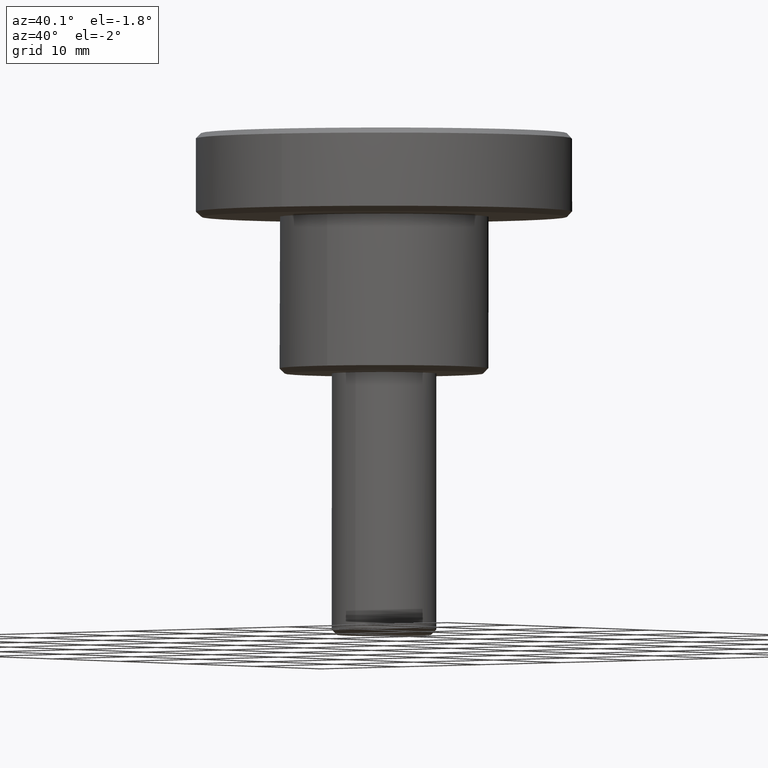
[diagram: clean part render]
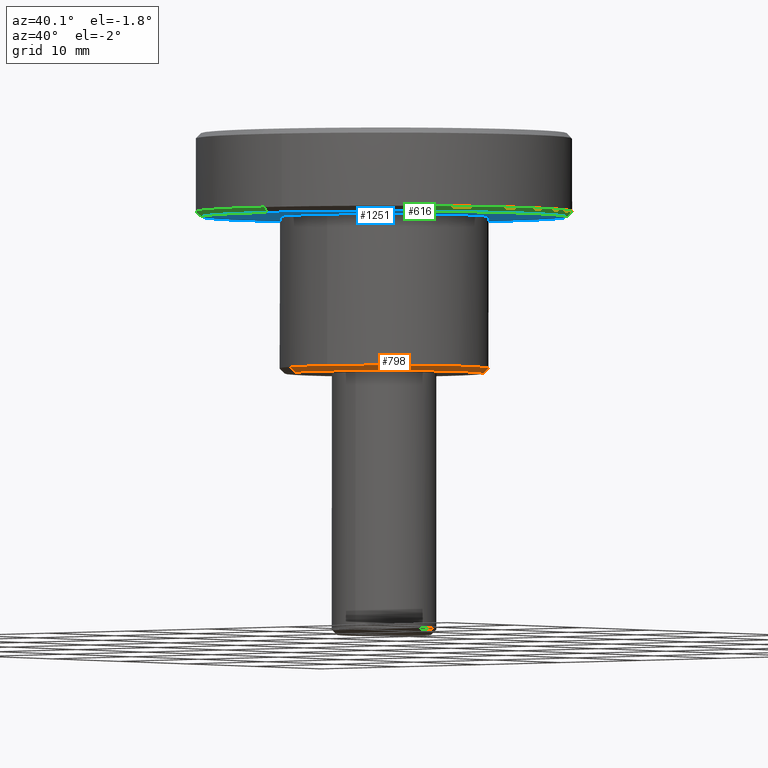
[diagram: same view with three faces highlighted in distinct colors, each labeled with its STEP entity id]
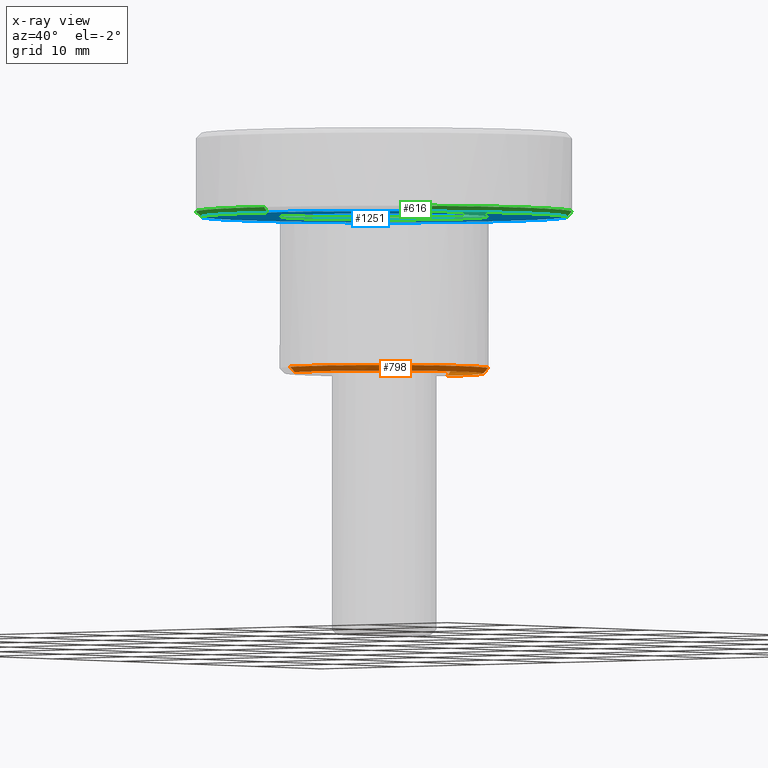
[diagram: x-ray of the same camera — body ghosted, the three highlighted faces saturated]
A machine part, auxiliary view with three faces highlighted in distinct colors.
The next image is the same camera in x-ray (body ghosted, the three faces saturated) — at least one of them is partly hidden behind the body in this view.
Their STEP definitions:

[orange] entity #798 — the highlighted face is a freeform B-spline surface patch.
#677=CARTESIAN_POINT('',(-3.834993910984958,-8.677872893325199,-0.012499999999999));
#678=CARTESIAN_POINT('',(-1.963370728928781,-9.504995345460285,-0.012499999999999));
#679=CARTESIAN_POINT('',(0.082793005540822,-9.487138745071324,-0.012499999999999));
#680=CARTESIAN_POINT('',(9.569931750612147,-9.404345739530502,-0.012499999999999));
#681=CARTESIAN_POINT('',(9.487138745071324,0.082793005540822,-0.012499999999999));
#682=CARTESIAN_POINT('',(9.404345739530502,9.569931750612147,-0.012499999999999));
#683=CARTESIAN_POINT('',(-0.082793005540822,9.487138745071324,-0.012499999999999));
#684=CARTESIAN_POINT('',(-4.047333330101089,-9.158357225791594,0.512812499999944));
#685=CARTESIAN_POINT('',(-2.072080419157019,-10.031276543606490,0.512812499999944));
#686=CARTESIAN_POINT('',(0.087377163719812,-10.012431242780970,0.512812499999944));
#687=CARTESIAN_POINT('',(10.099808406500783,-9.925054079061161,0.512812499999944));
#688=CARTESIAN_POINT('',(10.012431242780970,0.087377163719812,0.512812499999944));
#689=CARTESIAN_POINT('',(9.925054079061161,10.099808406500783,0.512812499999944));
#690=CARTESIAN_POINT('',(-0.087377163719812,10.012431242780970,0.512812499999944));
#698=(BOUNDED_SURFACE()B_SPLINE_SURFACE(2,1,((#677,#684),(#678,#685),(#679,#686),(#680,#687),(#681,#688),(#682,#689),(#683,#690)),.UNSPECIFIED.,.F.,.F.,.U.)B_SPLINE_SURFACE_WITH_KNOTS((3,2,2,3),(2,2),(0.0,4.645135863198720,21.234906803194139,37.824677743189568),(0.0,1.0),.UNSPECIFIED.)GEOMETRIC_REPRESENTATION_ITEM()RATIONAL_B_SPLINE_SURFACE(((0.881905454174416,0.881905454174416),(0.917989898732233,0.917989898732233),(1.0,1.0),(0.707106781186548,0.707106781186548),(1.0,1.0),(0.707106781186548,0.707106781186548),(1.0,1.0)))REPRESENTATION_ITEM('')SURFACE());
#699=CARTESIAN_POINT('',(-4.042154319910639,-9.146638095720460,0.500000000002798));
#700=VERTEX_POINT('',#699);
#701=CARTESIAN_POINT('',(1.241265795595685,-9.922663917742991,0.499999999999938));
#702=VERTEX_POINT('',#701);
#703=CARTESIAN_POINT('',(-4.042154319910640,-9.146638095720460,0.500000000002798));
#704=CARTESIAN_POINT('',(-2.111156172553931,-10.000000000000002,0.499999999999945));
#705=CARTESIAN_POINT('',(0.0,-10.0,0.499999999999945));
#706=CARTESIAN_POINT('',(0.623042079473550,-10.0,0.499999999999945));
#707=CARTESIAN_POINT('',(1.241265795595685,-9.922663917742991,0.499999999999938));
#715=(BOUNDED_CURVE()B_SPLINE_CURVE(2,(#703,#704,#705,#706,#707),.UNSPECIFIED.,.F.,.U.)B_SPLINE_CURVE_WITH_KNOTS((3,2,3),(0.181361578458884,0.250000000000000,0.271473687198623),.UNSPECIFIED.)CURVE()GEOMETRIC_REPRESENTATION_ITEM()RATIONAL_B_SPLINE_CURVE((0.883326595750776,0.919585087122192,1.0,0.974842010546408,0.954005899461398))REPRESENTATION_ITEM(''));
#716=EDGE_CURVE('',#700,#702,#715,.T.);
#717=ORIENTED_EDGE('',*,*,#716,.F.);
#718=CARTESIAN_POINT('',(-3.840046603930024,-8.689306190929296,4.038215E-012));
#719=VERTEX_POINT('',#718);
#720=CARTESIAN_POINT('',(-3.840046603930024,-8.689306190929296,4.038215E-012));
#721=CARTESIAN_POINT('',(-4.042154319910639,-9.146638095720460,0.500000000002798));
#722=QUASI_UNIFORM_CURVE('',1,(#720,#721),.UNSPECIFIED.,.F.,.U.);
#723=EDGE_CURVE('',#719,#700,#722,.T.);
#724=ORIENTED_EDGE('',*,*,#723,.F.);
#725=CARTESIAN_POINT('',(9.500000000000000,0.0,0.0));
#726=VERTEX_POINT('',#725);
#727=CARTESIAN_POINT('',(9.500000000000000,0.0,0.0));
#728=CARTESIAN_POINT('',(9.500000000000000,-9.500000000000000,0.0));
#729=CARTESIAN_POINT('',(0.0,-9.500000000000000,0.0));
#730=CARTESIAN_POINT('',(-2.005598363942649,-9.500000000000000,0.0));
#731=CARTESIAN_POINT('',(-3.840046603930024,-8.689306190929296,4.038215E-012));
#739=(BOUNDED_CURVE()B_SPLINE_CURVE(2,(#727,#728,#729,#730,#731),.UNSPECIFIED.,.F.,.U.)B_SPLINE_CURVE_WITH_KNOTS((3,2,3),(0.500000000000000,0.750000000000000,0.818638421541633),.UNSPECIFIED.)CURVE()GEOMETRIC_REPRESENTATION_ITEM()RATIONAL_B_SPLINE_CURVE((1.0,0.707106781186548,1.0,0.919585087121586,0.883326595750231))REPRESENTATION_ITEM(''));
#740=EDGE_CURVE('',#726,#719,#739,.T.);
#741=ORIENTED_EDGE('',*,*,#740,.F.);
#742=CARTESIAN_POINT('',(-0.082902087248873,9.499638269111445,1.942057E-012));
#743=VERTEX_POINT('',#742);
#744=CARTESIAN_POINT('',(-0.082902087248873,9.499638269111445,1.942057E-012));
#745=CARTESIAN_POINT('',(-0.041451832810970,9.500000000000002,0.0));
#746=CARTESIAN_POINT('',(0.0,9.500000000000000,0.0));
#747=CARTESIAN_POINT('',(9.500000000000000,9.500000000000000,0.0));
#748=CARTESIAN_POINT('',(9.500000000000000,0.0,0.0));
#756=(BOUNDED_CURVE()B_SPLINE_CURVE(2,(#744,#745,#746,#747,#748),.UNSPECIFIED.,.F.,.U.)B_SPLINE_CURVE_WITH_KNOTS((3,2,3),(0.248460105664482,0.250000000000000,0.500000000000000),.UNSPECIFIED.)CURVE()GEOMETRIC_REPRESENTATION_ITEM()RATIONAL_B_SPLINE_CURVE((0.996414028099178,0.998195901565751,1.0,0.707106781186548,1.0))REPRESENTATION_ITEM(''));
#757=EDGE_CURVE('',#743,#726,#756,.T.);
#758=ORIENTED_EDGE('',*,*,#757,.F.);
#759=CARTESIAN_POINT('',(-0.087262114092629,9.999619258921394,0.499999999998912));
#760=VERTEX_POINT('',#759);
#761=CARTESIAN_POINT('',(-0.082902087248873,9.499638269111445,1.942057E-012));
#762=CARTESIAN_POINT('',(-0.087262114092629,9.999619258921394,0.499999999998912));
#763=QUASI_UNIFORM_CURVE('',1,(#761,#762),.UNSPECIFIED.,.F.,.U.);
#764=EDGE_CURVE('',#743,#760,#763,.T.);
#765=ORIENTED_EDGE('',*,*,#764,.T.);
#766=CARTESIAN_POINT('',(10.0,0.0,0.499999999999945));
#767=VERTEX_POINT('',#766);
#768=CARTESIAN_POINT('',(10.0,0.0,0.499999999999945));
#769=CARTESIAN_POINT('',(10.000000000000002,10.000000000000002,0.499999999999945));
#770=CARTESIAN_POINT('',(0.0,10.0,0.499999999999945));
#771=CARTESIAN_POINT('',(-0.043631887668918,10.0,0.499999999999945));
#772=CARTESIAN_POINT('',(-0.087262114092629,9.999619258921394,0.499999999998912));
#780=(BOUNDED_CURVE()B_SPLINE_CURVE(2,(#768,#769,#770,#771,#772),.UNSPECIFIED.,.F.,.U.)B_SPLINE_CURVE_WITH_KNOTS((3,2,3),(0.500000000000000,0.750000000000000,0.751539837246853),.UNSPECIFIED.)CURVE()GEOMETRIC_REPRESENTATION_ITEM()RATIONAL_B_SPLINE_CURVE((1.0,0.707106781186548,1.0,0.998195968449281,0.996414160218372))REPRESENTATION_ITEM(''));
#781=EDGE_CURVE('',#767,#760,#780,.T.);
#782=ORIENTED_EDGE('',*,*,#781,.F.);
#783=CARTESIAN_POINT('',(1.241265795595685,-9.922663917742991,0.499999999999938));
#784=CARTESIAN_POINT('',(10.000000000000002,-8.826998754570639,0.499999999999945));
#785=CARTESIAN_POINT('',(10.0,0.0,0.499999999999945));
#793=(BOUNDED_CURVE()B_SPLINE_CURVE(2,(#783,#784,#785),.UNSPECIFIED.,.F.,.U.)B_SPLINE_CURVE_WITH_KNOTS((3,3),(0.271473687198623,0.500000000000000),.UNSPECIFIED.)CURVE()GEOMETRIC_REPRESENTATION_ITEM()RATIONAL_B_SPLINE_CURVE((0.954005899461398,0.732264770640140,1.0))REPRESENTATION_ITEM(''));
#794=EDGE_CURVE('',#702,#767,#793,.T.);
#795=ORIENTED_EDGE('',*,*,#794,.F.);
#796=EDGE_LOOP('',(#717,#724,#741,#758,#765,#782,#795));
#797=FACE_OUTER_BOUND('',#796,.T.);
#798=ADVANCED_FACE('',(#797),#698,.T.);

[blue] entity #1251 — the highlighted face is a freeform B-spline surface patch.
#487=CARTESIAN_POINT('',(17.500000000000000,0.0,15.0));
#488=VERTEX_POINT('',#487);
#489=CARTESIAN_POINT('',(14.330156972432810,-10.044730018544760,15.000000000000540));
#490=VERTEX_POINT('',#489);
#491=CARTESIAN_POINT('',(17.500000000000000,0.0,15.0));
#492=CARTESIAN_POINT('',(17.499999999999996,-5.522523042440245,15.000000000000004));
#493=CARTESIAN_POINT('',(14.330156972432809,-10.044730018544755,15.000000000000544));
#501=(BOUNDED_CURVE()B_SPLINE_CURVE(2,(#491,#492,#493),.UNSPECIFIED.,.F.,.U.)B_SPLINE_CURVE_WITH_KNOTS((3,3),(0.0,0.098673726203091),.UNSPECIFIED.)CURVE()GEOMETRIC_REPRESENTATION_ITEM()RATIONAL_B_SPLINE_CURVE((1.0,0.884396538880238,0.860049271925764))REPRESENTATION_ITEM(''));
#502=EDGE_CURVE('',#488,#490,#501,.T.);
#504=CARTESIAN_POINT('',(-17.500000000000000,0.0,15.0));
#505=VERTEX_POINT('',#504);
#506=CARTESIAN_POINT('',(-17.500000000000000,0.0,15.0));
#507=CARTESIAN_POINT('',(-17.499999999999996,17.499999999999996,14.999999999999995));
#508=CARTESIAN_POINT('',(0.0,17.500000000000000,15.0));
#509=CARTESIAN_POINT('',(17.499999999999996,17.499999999999996,14.999999999999995));
#510=CARTESIAN_POINT('',(17.500000000000000,0.0,15.0));
#518=(BOUNDED_CURVE()B_SPLINE_CURVE(2,(#506,#507,#508,#509,#510),.UNSPECIFIED.,.F.,.U.)B_SPLINE_CURVE_WITH_KNOTS((3,2,3),(0.500000000000000,0.750000000000000,1.0),.UNSPECIFIED.)CURVE()GEOMETRIC_REPRESENTATION_ITEM()RATIONAL_B_SPLINE_CURVE((1.0,0.707106781186548,1.0,0.707106781186548,1.0))REPRESENTATION_ITEM(''));
#519=EDGE_CURVE('',#505,#488,#518,.T.);
#521=CARTESIAN_POINT('',(0.152714371270018,-17.499333653629169,15.000000000006590));
#522=VERTEX_POINT('',#521);
#523=CARTESIAN_POINT('',(0.152714371270018,-17.499333653629169,15.000000000006594));
#524=CARTESIAN_POINT('',(0.076358639410697,-17.500000000000004,14.999999999999996));
#525=CARTESIAN_POINT('',(0.0,-17.500000000000000,15.0));
#526=CARTESIAN_POINT('',(-17.499999999999996,-17.499999999999996,14.999999999999995));
#527=CARTESIAN_POINT('',(-17.500000000000000,0.0,15.0));
#535=(BOUNDED_CURVE()B_SPLINE_CURVE(2,(#523,#524,#525,#526,#527),.UNSPECIFIED.,.F.,.U.)B_SPLINE_CURVE_WITH_KNOTS((3,2,3),(0.248460105664038,0.250000000000000,0.500000000000000),.UNSPECIFIED.)CURVE()GEOMETRIC_REPRESENTATION_ITEM()RATIONAL_B_SPLINE_CURVE((0.996414028098150,0.998195901565230,1.0,0.707106781186548,1.0))REPRESENTATION_ITEM(''));
#536=EDGE_CURVE('',#522,#505,#535,.T.);
#631=CARTESIAN_POINT('',(14.330156972432812,-10.044730018544756,15.000000000000535));
#632=CARTESIAN_POINT('',(9.159947341174370,-17.420728722283801,15.000000000000007));
#633=CARTESIAN_POINT('',(0.152714371270018,-17.499333653629169,15.000000000006599));
#641=(BOUNDED_CURVE()B_SPLINE_CURVE(2,(#631,#632,#633),.UNSPECIFIED.,.F.,.U.)B_SPLINE_CURVE_WITH_KNOTS((3,3),(0.098673726203091,0.248460105664038),.UNSPECIFIED.)CURVE()GEOMETRIC_REPRESENTATION_ITEM()RATIONAL_B_SPLINE_CURVE((0.860049271925764,0.823090203821112,0.996414028098150))REPRESENTATION_ITEM(''));
#642=EDGE_CURVE('',#490,#522,#641,.T.);
#1033=CARTESIAN_POINT('',(-0.087258199856431,9.999619293078442,15.0));
#1034=VERTEX_POINT('',#1033);
#1040=CARTESIAN_POINT('',(10.0,0.0,15.0));
#1041=VERTEX_POINT('',#1040);
#1042=CARTESIAN_POINT('',(-0.087258199856431,9.999619293078442,15.0));
#1043=CARTESIAN_POINT('',(-0.043629930439046,10.0,14.999999999999996));
#1044=CARTESIAN_POINT('',(0.0,10.0,15.0));
#1045=CARTESIAN_POINT('',(10.000000000000002,10.000000000000002,14.999999999999995));
#1046=CARTESIAN_POINT('',(10.0,0.0,15.0));
#1054=(BOUNDED_CURVE()B_SPLINE_CURVE(2,(#1042,#1043,#1044,#1045,#1046),.UNSPECIFIED.,.F.,.U.)B_SPLINE_CURVE_WITH_KNOTS((3,2,3),(0.248460231702231,0.250000000000000,0.500000000000000),.UNSPECIFIED.)CURVE()GEOMETRIC_REPRESENTATION_ITEM()RATIONAL_B_SPLINE_CURVE((0.996414319785989,0.998196049228158,1.0,0.707106781186548,1.0))REPRESENTATION_ITEM(''));
#1055=EDGE_CURVE('',#1034,#1041,#1054,.T.);
#1057=CARTESIAN_POINT('',(1.241273352387149,-9.922662972438818,15.0));
#1058=VERTEX_POINT('',#1057);
#1059=CARTESIAN_POINT('',(10.0,0.0,15.0));
#1060=CARTESIAN_POINT('',(10.0,-8.826991979813105,15.000000000000004));
#1061=CARTESIAN_POINT('',(1.241273352387149,-9.922662972438818,15.0));
#1069=(BOUNDED_CURVE()B_SPLINE_CURVE(2,(#1059,#1060,#1061),.UNSPECIFIED.,.F.,.U.)B_SPLINE_CURVE_WITH_KNOTS((3,3),(0.500000000000000,0.728526184365861),.UNSPECIFIED.)CURVE()GEOMETRIC_REPRESENTATION_ITEM()RATIONAL_B_SPLINE_CURVE((1.0,0.732264921111706,0.954005650217289))REPRESENTATION_ITEM(''));
#1070=EDGE_CURVE('',#1041,#1058,#1069,.T.);
#1105=CARTESIAN_POINT('',(-10.0,0.0,15.0));
#1106=VERTEX_POINT('',#1105);
#1107=CARTESIAN_POINT('',(1.241273352387149,-9.922662972438818,15.0));
#1108=CARTESIAN_POINT('',(0.623045902098769,-10.000000000000002,15.000000000000004));
#1109=CARTESIAN_POINT('',(0.0,-10.0,15.0));
#1110=CARTESIAN_POINT('',(-10.000000000000002,-10.000000000000002,14.999999999999995));
#1111=CARTESIAN_POINT('',(-10.0,0.0,15.0));
#1119=(BOUNDED_CURVE()B_SPLINE_CURVE(2,(#1107,#1108,#1109,#1110,#1111),.UNSPECIFIED.,.F.,.U.)B_SPLINE_CURVE_WITH_KNOTS((3,2,3),(0.728526184365861,0.750000000000000,1.0),.UNSPECIFIED.)CURVE()GEOMETRIC_REPRESENTATION_ITEM()RATIONAL_B_SPLINE_CURVE((0.954005650217289,0.974841860074842,1.0,0.707106781186548,1.0))REPRESENTATION_ITEM(''));
#1120=EDGE_CURVE('',#1058,#1106,#1119,.T.);
#1122=CARTESIAN_POINT('',(-10.0,0.0,15.0));
#1123=CARTESIAN_POINT('',(-10.0,9.913119199450355,15.0));
#1124=CARTESIAN_POINT('',(-0.087258199856431,9.999619293078442,15.0));
#1132=(BOUNDED_CURVE()B_SPLINE_CURVE(2,(#1122,#1123,#1124),.UNSPECIFIED.,.F.,.U.)B_SPLINE_CURVE_WITH_KNOTS((3,3),(0.0,0.248460231702231),.UNSPECIFIED.)CURVE()GEOMETRIC_REPRESENTATION_ITEM()RATIONAL_B_SPLINE_CURVE((1.0,0.708910731958390,0.996414319785989))REPRESENTATION_ITEM(''));
#1133=EDGE_CURVE('',#1106,#1034,#1132,.T.);
#1234=CARTESIAN_POINT('',(-19.248249932163208,-19.247551095767310,15.0));
#1235=CARTESIAN_POINT('',(19.248250870936360,-19.247551095767310,15.0));
#1236=CARTESIAN_POINT('',(-19.248249932163208,19.248217624707511,15.0));
#1237=CARTESIAN_POINT('',(19.248250870936360,19.248217624707511,15.0));
#1238=B_SPLINE_SURFACE_WITH_KNOTS('',1,1,((#1234,#1236),(#1235,#1237)),.UNSPECIFIED.,.F.,.F.,.U.,(2,2),(2,2),(0.0,38.496500803099579),(0.0,38.495768720474807),.UNSPECIFIED.);
#1239=ORIENTED_EDGE('',*,*,#502,.T.);
#1240=ORIENTED_EDGE('',*,*,#642,.T.);
#1241=ORIENTED_EDGE('',*,*,#536,.T.);
#1242=ORIENTED_EDGE('',*,*,#519,.T.);
#1243=EDGE_LOOP('',(#1239,#1240,#1241,#1242));
#1244=FACE_OUTER_BOUND('',#1243,.T.);
#1245=ORIENTED_EDGE('',*,*,#1133,.F.);
#1246=ORIENTED_EDGE('',*,*,#1120,.F.);
#1247=ORIENTED_EDGE('',*,*,#1070,.F.);
#1248=ORIENTED_EDGE('',*,*,#1055,.F.);
#1249=EDGE_LOOP('',(#1245,#1246,#1247,#1248));
#1250=FACE_BOUND('',#1249,.T.);
#1251=ADVANCED_FACE('',(#1244,#1250),#1238,.F.);

[green] entity #616 — the highlighted face is a freeform B-spline surface patch.
#461=CARTESIAN_POINT('',(14.319921146030703,-10.037555211378052,14.987499999999999));
#462=CARTESIAN_POINT('',(17.535725391208214,-5.449778383031156,14.987499999999997));
#463=CARTESIAN_POINT('',(17.486834129584690,0.152605289527813,14.987500000000001));
#464=CARTESIAN_POINT('',(17.334228840056877,17.639439419112509,14.987499999999997));
#465=CARTESIAN_POINT('',(-0.152605289527813,17.486834129584690,14.987500000000001));
#466=CARTESIAN_POINT('',(-17.639439419112509,17.334228840056877,14.987499999999997));
#467=CARTESIAN_POINT('',(-17.486834129584690,-0.152605289527813,14.987500000000001));
#468=CARTESIAN_POINT('',(-17.334228840056877,-17.639439419112509,14.987499999999997));
#469=CARTESIAN_POINT('',(0.152605289527813,-17.486834129584690,14.987500000000001));
#470=CARTESIAN_POINT('',(14.750081750864162,-10.339076482113015,15.512812500000001));
#471=CARTESIAN_POINT('',(18.062486548867700,-5.613485985995352,15.512812500000004));
#472=CARTESIAN_POINT('',(18.012126627294400,0.157189447706803,15.512812500000001));
#473=CARTESIAN_POINT('',(17.854937179587598,18.169316075001191,15.512812499999999));
#474=CARTESIAN_POINT('',(-0.157189447706803,18.012126627294400,15.512812500000001));
#475=CARTESIAN_POINT('',(-18.169316075001191,17.854937179587598,15.512812499999999));
#476=CARTESIAN_POINT('',(-18.012126627294400,-0.157189447706803,15.512812500000001));
#477=CARTESIAN_POINT('',(-17.854937179587598,-18.169316075001191,15.512812499999999));
#478=CARTESIAN_POINT('',(0.157189447706803,-18.012126627294400,15.512812500000001));
#486=(BOUNDED_SURFACE()B_SPLINE_SURFACE(2,1,((#461,#470),(#462,#471),(#463,#472),(#464,#473),(#465,#474),(#466,#475),(#467,#476),(#468,#477),(#469,#478)),.UNSPECIFIED.,.F.,.F.,.U.)B_SPLINE_SURFACE_WITH_KNOTS((3,2,2,2,3),(2,2),(0.0,11.937841974373820,41.782446910308373,71.627051846242921,101.471656782177500),(0.0,1.0),.UNSPECIFIED.)GEOMETRIC_REPRESENTATION_ITEM()RATIONAL_B_SPLINE_SURFACE(((0.859411254969543,0.859411254969543),(0.882842712474619,0.882842712474619),(1.0,1.0),(0.707106781186548,0.707106781186548),(1.0,1.0),(0.707106781186548,0.707106781186548),(1.0,1.0),(0.707106781186548,0.707106781186548),(1.0,1.0)))REPRESENTATION_ITEM('')SURFACE());
#487=CARTESIAN_POINT('',(17.500000000000000,0.0,15.0));
#488=VERTEX_POINT('',#487);
#489=CARTESIAN_POINT('',(14.330156972432810,-10.044730018544760,15.000000000000540));
#490=VERTEX_POINT('',#489);
#491=CARTESIAN_POINT('',(17.500000000000000,0.0,15.0));
#492=CARTESIAN_POINT('',(17.499999999999996,-5.522523042440245,15.000000000000004));
#493=CARTESIAN_POINT('',(14.330156972432809,-10.044730018544755,15.000000000000544));
#501=(BOUNDED_CURVE()B_SPLINE_CURVE(2,(#491,#492,#493),.UNSPECIFIED.,.F.,.U.)B_SPLINE_CURVE_WITH_KNOTS((3,3),(0.0,0.098673726203091),.UNSPECIFIED.)CURVE()GEOMETRIC_REPRESENTATION_ITEM()RATIONAL_B_SPLINE_CURVE((1.0,0.884396538880238,0.860049271925764))REPRESENTATION_ITEM(''));
#502=EDGE_CURVE('',#488,#490,#501,.T.);
#503=ORIENTED_EDGE('',*,*,#502,.F.);
#504=CARTESIAN_POINT('',(-17.500000000000000,0.0,15.0));
#505=VERTEX_POINT('',#504);
#506=CARTESIAN_POINT('',(-17.500000000000000,0.0,15.0));
#507=CARTESIAN_POINT('',(-17.499999999999996,17.499999999999996,14.999999999999995));
#508=CARTESIAN_POINT('',(0.0,17.500000000000000,15.0));
#509=CARTESIAN_POINT('',(17.499999999999996,17.499999999999996,14.999999999999995));
#510=CARTESIAN_POINT('',(17.500000000000000,0.0,15.0));
#518=(BOUNDED_CURVE()B_SPLINE_CURVE(2,(#506,#507,#508,#509,#510),.UNSPECIFIED.,.F.,.U.)B_SPLINE_CURVE_WITH_KNOTS((3,2,3),(0.500000000000000,0.750000000000000,1.0),.UNSPECIFIED.)CURVE()GEOMETRIC_REPRESENTATION_ITEM()RATIONAL_B_SPLINE_CURVE((1.0,0.707106781186548,1.0,0.707106781186548,1.0))REPRESENTATION_ITEM(''));
#519=EDGE_CURVE('',#505,#488,#518,.T.);
#520=ORIENTED_EDGE('',*,*,#519,.F.);
#521=CARTESIAN_POINT('',(0.152714371270018,-17.499333653629169,15.000000000006590));
#522=VERTEX_POINT('',#521);
#523=CARTESIAN_POINT('',(0.152714371270018,-17.499333653629169,15.000000000006594));
#524=CARTESIAN_POINT('',(0.076358639410697,-17.500000000000004,14.999999999999996));
#525=CARTESIAN_POINT('',(0.0,-17.500000000000000,15.0));
#526=CARTESIAN_POINT('',(-17.499999999999996,-17.499999999999996,14.999999999999995));
#527=CARTESIAN_POINT('',(-17.500000000000000,0.0,15.0));
#535=(BOUNDED_CURVE()B_SPLINE_CURVE(2,(#523,#524,#525,#526,#527),.UNSPECIFIED.,.F.,.U.)B_SPLINE_CURVE_WITH_KNOTS((3,2,3),(0.248460105664038,0.250000000000000,0.500000000000000),.UNSPECIFIED.)CURVE()GEOMETRIC_REPRESENTATION_ITEM()RATIONAL_B_SPLINE_CURVE((0.996414028098150,0.998195901565230,1.0,0.707106781186548,1.0))REPRESENTATION_ITEM(''));
#536=EDGE_CURVE('',#522,#505,#535,.T.);
#537=ORIENTED_EDGE('',*,*,#536,.F.);
#538=CARTESIAN_POINT('',(0.157077638971129,-17.999314615155150,15.500000000000041));
#539=VERTEX_POINT('',#538);
#540=CARTESIAN_POINT('',(0.152714371270018,-17.499333653629169,15.000000000006590));
#541=CARTESIAN_POINT('',(0.157077638971129,-17.999314615155150,15.500000000000041));
#542=QUASI_UNIFORM_CURVE('',1,(#540,#541),.UNSPECIFIED.,.F.,.U.);
#543=EDGE_CURVE('',#522,#539,#542,.T.);
#544=ORIENTED_EDGE('',*,*,#543,.T.);
#545=CARTESIAN_POINT('',(-18.0,0.0,15.500000000000000));
#546=VERTEX_POINT('',#545);
#547=CARTESIAN_POINT('',(-18.0,0.0,15.500000000000000));
#548=CARTESIAN_POINT('',(-18.000000000000007,-18.000000000000007,15.500000000000005));
#549=CARTESIAN_POINT('',(0.0,-18.0,15.500000000000000));
#550=CARTESIAN_POINT('',(0.078540314773029,-17.999999999999996,15.499999999999993));
#551=CARTESIAN_POINT('',(0.157077638971129,-17.999314615155146,15.500000000000041));
#559=(BOUNDED_CURVE()B_SPLINE_CURVE(2,(#547,#548,#549,#550,#551),.UNSPECIFIED.,.F.,.U.)B_SPLINE_CURVE_WITH_KNOTS((3,2,3),(0.0,0.250000000000000,0.251539894334995),.UNSPECIFIED.)CURVE()GEOMETRIC_REPRESENTATION_ITEM()RATIONAL_B_SPLINE_CURVE((1.0,0.707106781186547,1.0,0.998195901566363,0.996414028100388))REPRESENTATION_ITEM(''));
#560=EDGE_CURVE('',#546,#539,#559,.T.);
#561=ORIENTED_EDGE('',*,*,#560,.F.);
#562=CARTESIAN_POINT('',(-0.157061939083980,17.999314752152220,15.500000000000000));
#563=VERTEX_POINT('',#562);
#564=CARTESIAN_POINT('',(-0.157061939083980,17.999314752152223,15.500000000000000));
#565=CARTESIAN_POINT('',(-18.0,17.843617355375248,15.500000000000004));
#566=CARTESIAN_POINT('',(-18.0,0.0,15.500000000000000));
#574=(BOUNDED_CURVE()B_SPLINE_CURVE(2,(#564,#565,#566),.UNSPECIFIED.,.F.,.U.)B_SPLINE_CURVE_WITH_KNOTS((3,3),(0.751539740694573,1.0),.UNSPECIFIED.)CURVE()GEOMETRIC_REPRESENTATION_ITEM()RATIONAL_B_SPLINE_CURVE((0.996414383667592,0.708910699619233,1.0))REPRESENTATION_ITEM(''));
#575=EDGE_CURVE('',#563,#546,#574,.T.);
#576=ORIENTED_EDGE('',*,*,#575,.F.);
#577=CARTESIAN_POINT('',(18.0,0.0,15.500000000000000));
#578=VERTEX_POINT('',#577);
#579=CARTESIAN_POINT('',(18.0,0.0,15.500000000000000));
#580=CARTESIAN_POINT('',(18.000000000000007,18.000000000000007,15.500000000000005));
#581=CARTESIAN_POINT('',(0.0,18.0,15.500000000000000));
#582=CARTESIAN_POINT('',(-0.078532464380953,18.000000000000004,15.500000000000002));
#583=CARTESIAN_POINT('',(-0.157061939083980,17.999314752152223,15.500000000000000));
#591=(BOUNDED_CURVE()B_SPLINE_CURVE(2,(#579,#580,#581,#582,#583),.UNSPECIFIED.,.F.,.U.)B_SPLINE_CURVE_WITH_KNOTS((3,2,3),(0.500000000000000,0.750000000000000,0.751539740694573),.UNSPECIFIED.)CURVE()GEOMETRIC_REPRESENTATION_ITEM()RATIONAL_B_SPLINE_CURVE((1.0,0.707106781186547,1.0,0.998196081567314,0.996414383667592))REPRESENTATION_ITEM(''));
#592=EDGE_CURVE('',#578,#563,#591,.T.);
#593=ORIENTED_EDGE('',*,*,#592,.F.);
#594=CARTESIAN_POINT('',(14.739590028793319,-10.331722304780641,15.500000000000121));
#595=VERTEX_POINT('',#594);
#596=CARTESIAN_POINT('',(14.739590028793319,-10.331722304780641,15.500000000000117));
#597=CARTESIAN_POINT('',(18.000000000000004,-5.680309415070633,15.500000000000002));
#598=CARTESIAN_POINT('',(18.0,0.0,15.500000000000000));
#606=(BOUNDED_CURVE()B_SPLINE_CURVE(2,(#596,#597,#598),.UNSPECIFIED.,.F.,.U.)B_SPLINE_CURVE_WITH_KNOTS((3,3),(0.401326273797075,0.500000000000000),.UNSPECIFIED.)CURVE()GEOMETRIC_REPRESENTATION_ITEM()RATIONAL_B_SPLINE_CURVE((0.860049271925846,0.884396538880431,1.0))REPRESENTATION_ITEM(''));
#607=EDGE_CURVE('',#595,#578,#606,.T.);
#608=ORIENTED_EDGE('',*,*,#607,.F.);
#609=CARTESIAN_POINT('',(14.330156972432810,-10.044730018544760,15.000000000000540));
#610=CARTESIAN_POINT('',(14.739590028793319,-10.331722304780641,15.500000000000121));
#611=QUASI_UNIFORM_CURVE('',1,(#609,#610),.UNSPECIFIED.,.F.,.U.);
#612=EDGE_CURVE('',#490,#595,#611,.T.);
#613=ORIENTED_EDGE('',*,*,#612,.F.);
#614=EDGE_LOOP('',(#503,#520,#537,#544,#561,#576,#593,#608,#613));
#615=FACE_OUTER_BOUND('',#614,.T.);
#616=ADVANCED_FACE('',(#615),#486,.T.);